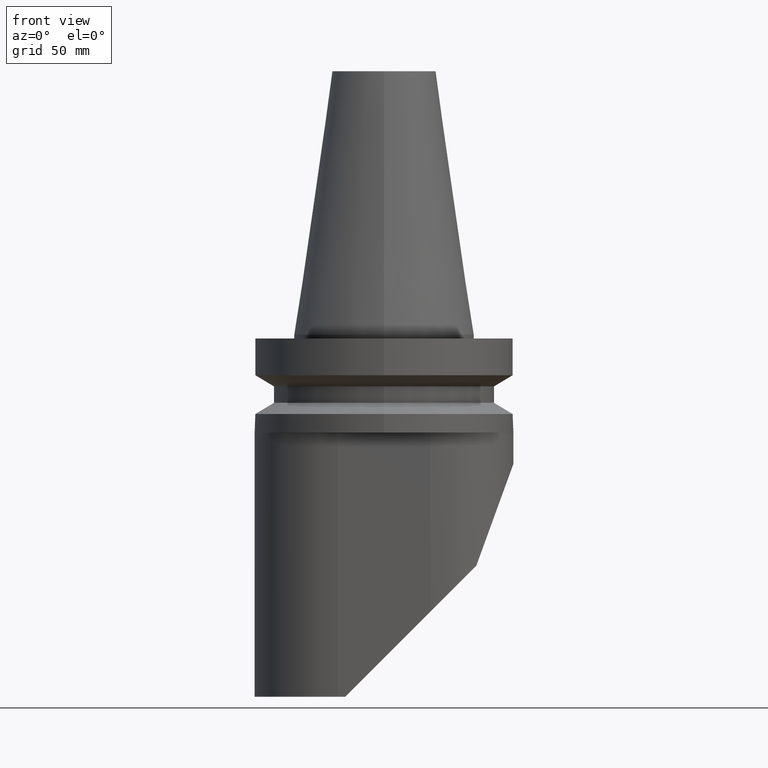
[diagram: clean part render]
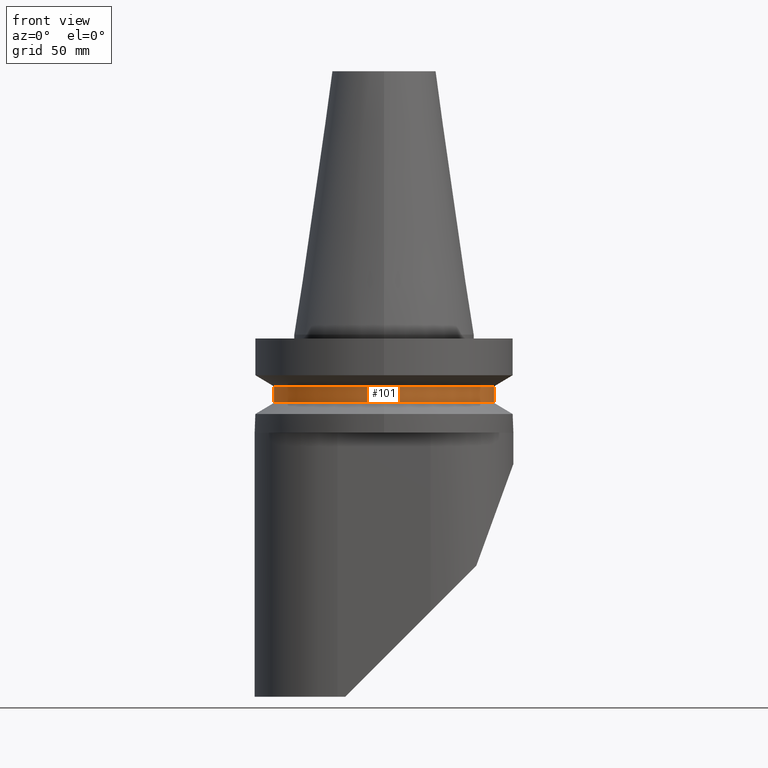
[diagram: same view with one face highlighted and labeled with its STEP entity id]
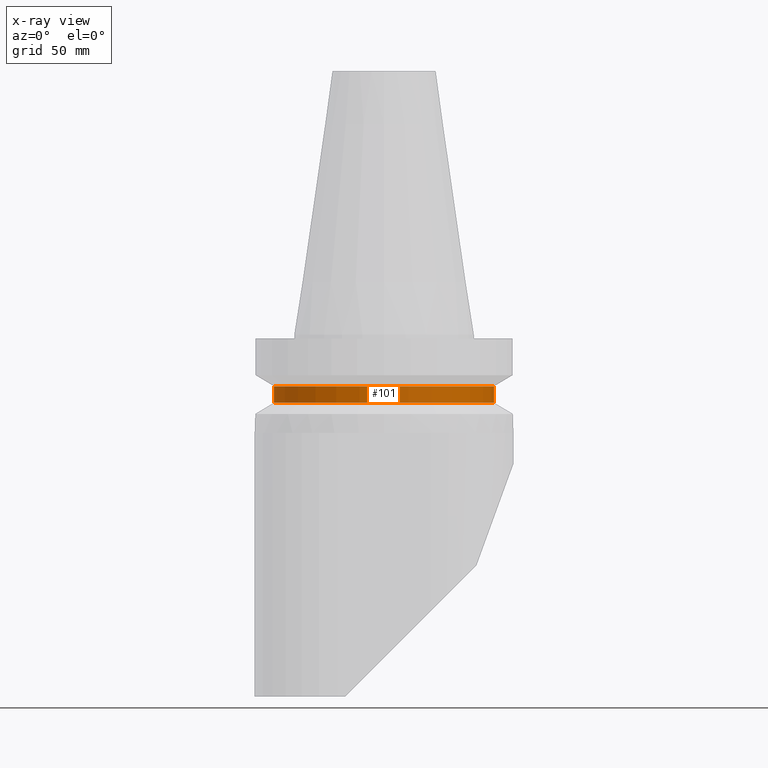
[diagram: x-ray of the same camera — body ghosted, the highlighted face saturated]
A machine part, front view. The second image highlights one B-rep face of the part: STEP entity #101.
The next image is the same camera in x-ray: the body ghosted, the highlighted face saturated — about 0% of this face is hidden behind the body in this view.
In plain terms, the highlighted cylindrical surface (bore or boss wall) has radius 42.5 mm, axis along (-0, -0, -1).
Its self-contained STEP definition (entity closure, byte-faithful):
#101=ADVANCED_FACE('Unnamed[1]',(#295,#296),#297,.T.);
#152=EDGE_CURVE('Unnamed[1]',#374,#374,#375,.T.);
#230=EDGE_CURVE('Unnamed[1]',#480,#480,#481,.T.);
#295=FACE_BOUND('',#548,.T.);
#296=FACE_BOUND('',#549,.T.);
#297=CYLINDRICAL_SURFACE('',#550,42.5000000000007);
#374=VERTEX_POINT('',#655);
#375=CIRCLE('',#656,42.5000000000006);
#480=VERTEX_POINT('',#812);
#481=CIRCLE('',#813,42.5000000000008);
#548=EDGE_LOOP('',(#898));
#549=EDGE_LOOP('',(#899));
#550=AXIS2_PLACEMENT_3D('',#900,#901,#902);
#655=CARTESIAN_POINT('',(-6.8194379233864E-015,-42.5000000000006,-26.3698729810796));
#656=AXIS2_PLACEMENT_3D('',#973,#974,#975);
#812=CARTESIAN_POINT('',(-6.43124044338837E-015,-42.5000000000008,-20.0301270189241));
#813=AXIS2_PLACEMENT_3D('',#1088,#1089,#1090);
#898=ORIENTED_EDGE('',*,*,#230,.F.);
#899=ORIENTED_EDGE('',*,*,#152,.T.);
#900=CARTESIAN_POINT('',(-1.42059028701105E-015,-3.3990430716901E-014,-23.2000000000019));
#901=DIRECTION('',(-6.12323399573678E-017,-1.04638831828052E-015,-1.0));
#902=DIRECTION('',(-1.22464679914735E-016,-1.0,1.04638831828052E-015));
#973=CARTESIAN_POINT('',(-1.61468902701008E-015,-3.73073487747338E-014,-26.3698729810797));
#974=DIRECTION('',(6.12323399573678E-017,1.04638831828052E-015,1.0));
#975=DIRECTION('',(-1.22464679914735E-016,-1.0,1.04638831828052E-015));
#1088=CARTESIAN_POINT('',(-1.22649154701202E-015,-3.06735126590681E-014,-20.0301270189241));
#1089=DIRECTION('',(6.12323399573678E-017,1.04638831828052E-015,1.0));
#1090=DIRECTION('',(-1.22464679914735E-016,-1.0,1.04638831828052E-015));